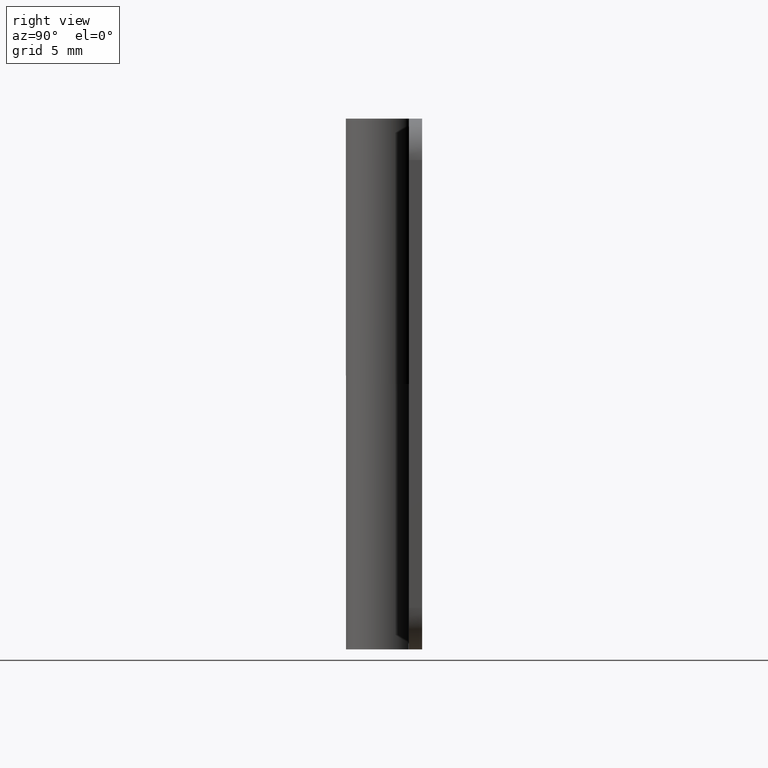
[diagram: clean part render]
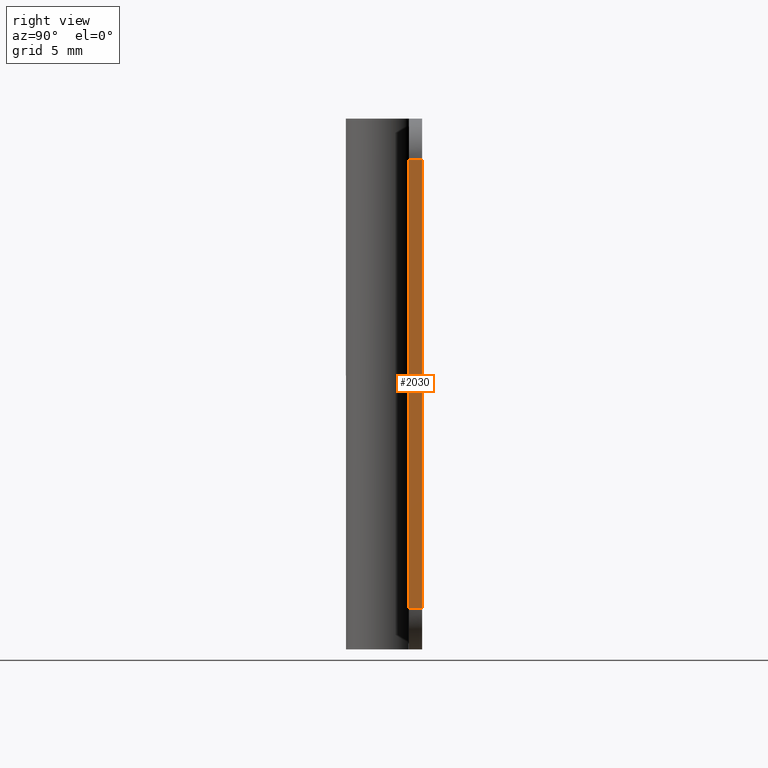
[diagram: same view with one face highlighted and labeled with its STEP entity id]
A machine part, right view. The second image highlights one B-rep face of the part: STEP entity #2030.
In plain terms, the highlighted face is a freeform B-spline surface patch.
Its self-contained STEP definition (entity closure, byte-faithful):
#1720=CARTESIAN_POINT('',(15.0,1.499999999999986,2.499999999999945));
#1721=VERTEX_POINT('',#1720);
#1744=CARTESIAN_POINT('',(15.0,2.299999000000000,2.499999999999945));
#1745=VERTEX_POINT('',#1744);
#1759=CARTESIAN_POINT('',(15.0,2.299999000000000,2.499999999999945));
#1760=CARTESIAN_POINT('',(15.0,1.499999999999986,2.499999999999945));
#1761=QUASI_UNIFORM_CURVE('',1,(#1759,#1760),.UNSPECIFIED.,.F.,.U.);
#1762=EDGE_CURVE('',#1745,#1721,#1761,.T.);
#1783=CARTESIAN_POINT('',(15.0,1.499999999999986,29.499991999999850));
#1784=VERTEX_POINT('',#1783);
#1798=CARTESIAN_POINT('',(15.0,2.299999000000000,29.499991999999850));
#1799=VERTEX_POINT('',#1798);
#1800=CARTESIAN_POINT('',(15.0,1.499999999999986,29.499991999999850));
#1801=CARTESIAN_POINT('',(15.0,2.299999000000000,29.499991999999850));
#1802=QUASI_UNIFORM_CURVE('',1,(#1800,#1801),.UNSPECIFIED.,.F.,.U.);
#1803=EDGE_CURVE('',#1784,#1799,#1802,.T.);
#2011=CARTESIAN_POINT('',(15.0,2.339958948499448,1.151350451931173));
#2012=CARTESIAN_POINT('',(15.0,2.339958948499448,30.848642272264840));
#2013=CARTESIAN_POINT('',(15.0,1.460040030042893,1.151350451931173));
#2014=CARTESIAN_POINT('',(15.0,1.460040030042893,30.848642272264840));
#2015=B_SPLINE_SURFACE_WITH_KNOTS('',1,1,((#2011,#2013),(#2012,#2014)),.UNSPECIFIED.,.F.,.F.,.U.,(2,2),(2,2),(0.0,29.697291820333671),(0.041708334948495,0.958291687403247),.UNSPECIFIED.);
#2016=CARTESIAN_POINT('',(15.0,2.299999000000000,29.499991999999850));
#2017=CARTESIAN_POINT('',(15.0,2.299999000000000,2.499999999999945));
#2018=QUASI_UNIFORM_CURVE('',1,(#2016,#2017),.UNSPECIFIED.,.F.,.U.);
#2019=EDGE_CURVE('',#1799,#1745,#2018,.T.);
#2020=ORIENTED_EDGE('',*,*,#2019,.F.);
#2021=ORIENTED_EDGE('',*,*,#1803,.F.);
#2022=CARTESIAN_POINT('',(15.0,1.499999999999986,29.499991999999850));
#2023=CARTESIAN_POINT('',(15.0,1.499999999999986,2.499999999999945));
#2024=QUASI_UNIFORM_CURVE('',1,(#2022,#2023),.UNSPECIFIED.,.F.,.U.);
#2025=EDGE_CURVE('',#1784,#1721,#2024,.T.);
#2026=ORIENTED_EDGE('',*,*,#2025,.T.);
#2027=ORIENTED_EDGE('',*,*,#1762,.F.);
#2028=EDGE_LOOP('',(#2020,#2021,#2026,#2027));
#2029=FACE_OUTER_BOUND('',#2028,.T.);
#2030=ADVANCED_FACE('',(#2029),#2015,.T.);